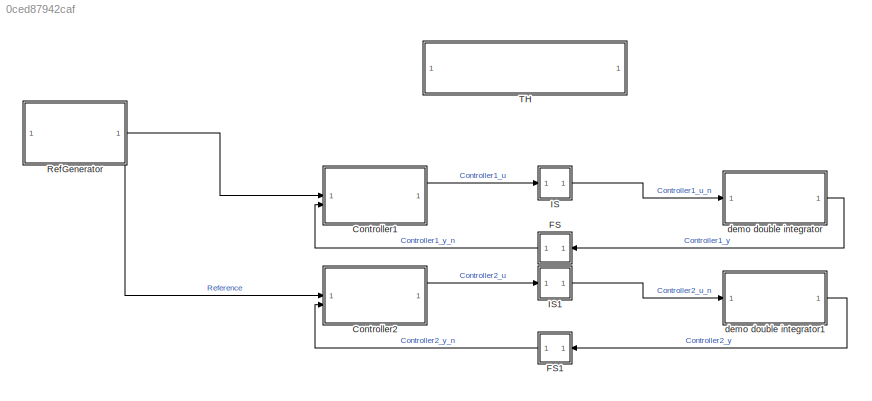
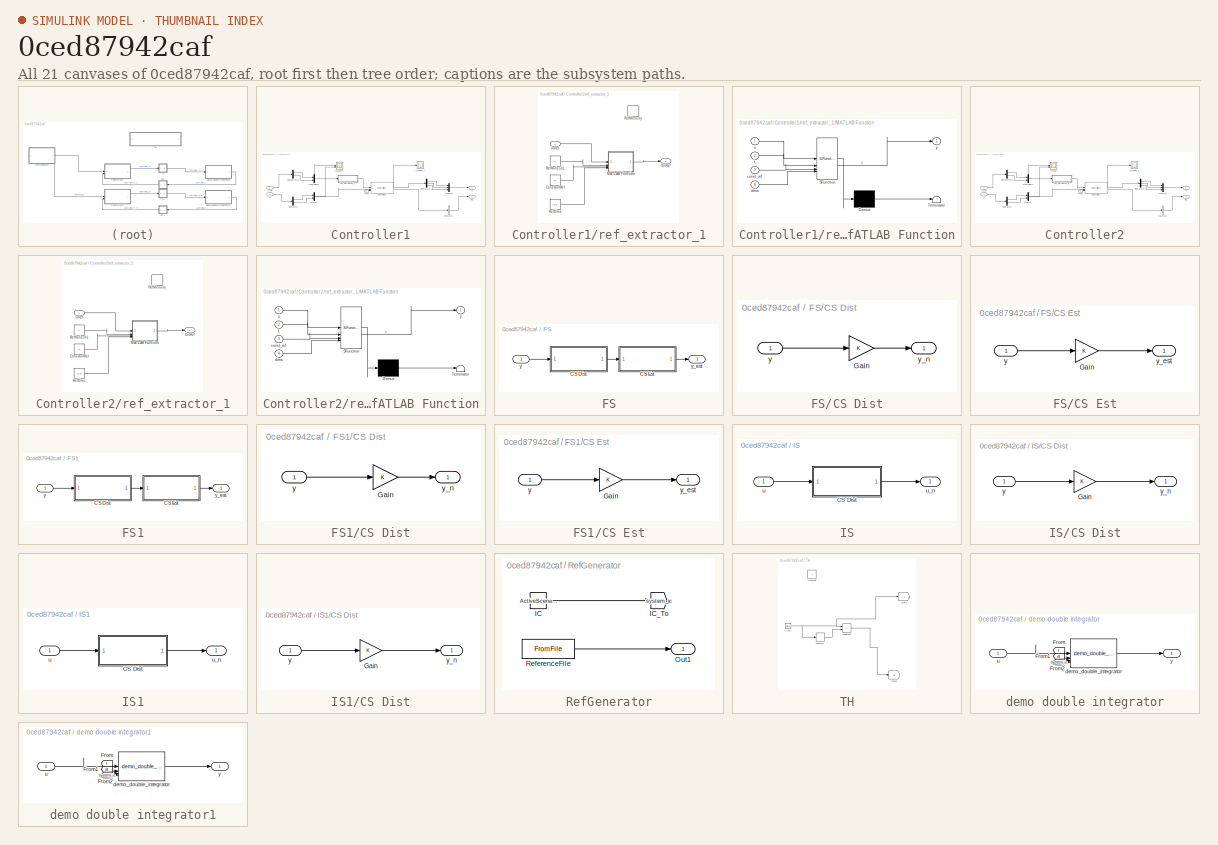
[diagram: thumbnail index - all 21 canvases of the model, root first then tree order]
MODEL slx_0ced87942caf
KIND model
CONFIG AbsTol = auto
CONFIG EnableMultiTasking = off
CONFIG FixedStep = 0.05
CONFIG InitFcn = on_model_start
CONFIG MaxStep = auto
CONFIG MinStep = auto
CONFIG PostLoadFcn = on_model_load
CONFIG RelTol = 1e-3
CONFIG SampleTimeConstraint = Unconstrained
CONFIG SolverName = FixedStepAuto
CONFIG StartTime = 0.0
CONFIG StopFcn = on_simulation_done
CONFIG StopTime = 10.0
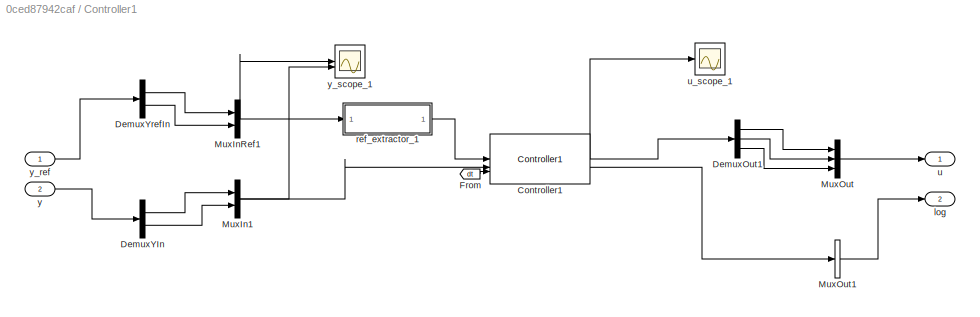
BLOCK [SubSystem] Controller1
BLOCK [Reference] Controller1/Controller1  REF=demo_lib_ctl/Controller1
  SourceBlock = demo_lib_ctl/Controller1
  Tag = __cs_comptype:ctl;__cs_compimpl:mat;
BLOCK [Demux] Controller1/DemuxOut1
  Outputs = 3
BLOCK [Demux] Controller1/DemuxYIn
  Outputs = 2
BLOCK [Demux] Controller1/DemuxYrefIn
  Outputs = 2
BLOCK [From] Controller1/From
  GotoTag = dt
  TagVisibility = global
BLOCK [Mux] Controller1/MuxIn1
  DisplayOption = bar
  Inputs = 2
BLOCK [Mux] Controller1/MuxInRef1
  DisplayOption = bar
  Inputs = 2
BLOCK [Mux] Controller1/MuxOut
  DisplayOption = bar
  Inputs = 3
BLOCK [BusCreator] Controller1/MuxOut1
  DisplayOption = bar
  InheritFromInputs = on
  Inputs = 1
BLOCK [Outport] Controller1/log
  Port = 2
BLOCK [SubSystem] Controller1/ref_extractor_1
BLOCK [Constant] Controller1/ref_extractor_1/ConstantRef
  Value = 0
BLOCK [Inport] Controller1/ref_extractor_1/InRef
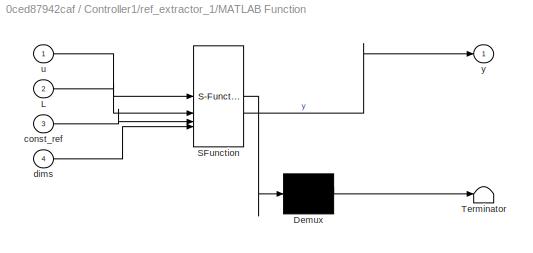
BLOCK [SubSystem] Controller1/ref_extractor_1/MATLAB Function
  ErrorFcn = Stateflow.Translate.translate
  PermitHierarchicalResolution = ExplicitOnly
  SFBlockType = MATLAB Function
  TreatAsAtomicUnit = on
BLOCK [Demux] Controller1/ref_extractor_1/MATLAB Function/ Demux 
  Outputs = 1
BLOCK [S-Function] Controller1/ref_extractor_1/MATLAB Function/ SFunction 
  EnableBusSupport = off
  FunctionName = sf_sfun
  Parameters = GlobalReference
  PortCounts = [4 2]
  SFcnIsStateOwnerBlock = off
  SFunctionDeploymentMode = off
  Tag = Stateflow S-Function 7
BLOCK [Terminator] Controller1/ref_extractor_1/MATLAB Function/ Terminator 
BLOCK [Inport] Controller1/ref_extractor_1/MATLAB Function/L
  Port = 2
BLOCK [Inport] Controller1/ref_extractor_1/MATLAB Function/const_ref
  Port = 3
BLOCK [Inport] Controller1/ref_extractor_1/MATLAB Function/dims
  Port = 4
BLOCK [Inport] Controller1/ref_extractor_1/MATLAB Function/u
BLOCK [Outport] Controller1/ref_extractor_1/MATLAB Function/y
BLOCK [Outport] Controller1/ref_extractor_1/OutRef
BLOCK [Constant] Controller1/ref_extractor_1/RefDims
  Value = [1 2]
BLOCK [Constant] Controller1/ref_extractor_1/RefHorizonL
BLOCK [DataStoreMemory] Controller1/ref_extractor_1/RefMemory
  DataStoreName = ref
  OutDataTypeStr = double
  ShowAdditionalParam = off
  SignalType = real
  WriteAfterWriteMsg = warning
BLOCK [Outport] Controller1/u
  PortDimensions = 3
BLOCK [Scope] Controller1/u_scope_1
  Floating = off
  NumInputPorts = 1
BLOCK [Inport] Controller1/y
  Port = 2
  PortDimensions = 2
BLOCK [Inport] Controller1/y_ref
  PortDimensions = 2
BLOCK [Scope] Controller1/y_scope_1
  Floating = off
  NumInputPorts = 2
BLOCK [SubSystem] Controller2
BLOCK [Reference] Controller2/Controller2  REF=demo_lib_ctl/Controller2
  SourceBlock = demo_lib_ctl/Controller2
  Tag = __cs_comptype:ctl;__cs_compimpl:py;
BLOCK [Demux] Controller2/DemuxOut1
  Outputs = 3
BLOCK [Demux] Controller2/DemuxYIn
  Outputs = 2
BLOCK [Demux] Controller2/DemuxYrefIn
  Outputs = 2
BLOCK [From] Controller2/From
  GotoTag = dt
  TagVisibility = global
BLOCK [Mux] Controller2/MuxIn1
  DisplayOption = bar
  Inputs = 2
BLOCK [Mux] Controller2/MuxInRef1
  DisplayOption = bar
  Inputs = 2
BLOCK [Mux] Controller2/MuxOut
  DisplayOption = bar
  Inputs = 3
BLOCK [BusCreator] Controller2/MuxOut1
  DisplayOption = bar
  InheritFromInputs = on
  Inputs = 1
BLOCK [Outport] Controller2/log
  Port = 2
BLOCK [SubSystem] Controller2/ref_extractor_1
BLOCK [Constant] Controller2/ref_extractor_1/ConstantRef
  Value = 0
BLOCK [Inport] Controller2/ref_extractor_1/InRef
BLOCK [SubSystem] Controller2/ref_extractor_1/MATLAB Function
  ErrorFcn = Stateflow.Translate.translate
  PermitHierarchicalResolution = ExplicitOnly
  SFBlockType = MATLAB Function
  TreatAsAtomicUnit = on
BLOCK [Demux] Controller2/ref_extractor_1/MATLAB Function/ Demux 
  Outputs = 1
BLOCK [S-Function] Controller2/ref_extractor_1/MATLAB Function/ SFunction 
  EnableBusSupport = off
  FunctionName = sf_sfun
  Parameters = GlobalReference
  PortCounts = [4 2]
  SFcnIsStateOwnerBlock = off
  SFunctionDeploymentMode = off
  Tag = Stateflow S-Function 1
BLOCK [Terminator] Controller2/ref_extractor_1/MATLAB Function/ Terminator 
BLOCK [Inport] Controller2/ref_extractor_1/MATLAB Function/L
  Port = 2
BLOCK [Inport] Controller2/ref_extractor_1/MATLAB Function/const_ref
  Port = 3
BLOCK [Inport] Controller2/ref_extractor_1/MATLAB Function/dims
  Port = 4
BLOCK [Inport] Controller2/ref_extractor_1/MATLAB Function/u
BLOCK [Outport] Controller2/ref_extractor_1/MATLAB Function/y
BLOCK [Outport] Controller2/ref_extractor_1/OutRef
BLOCK [Constant] Controller2/ref_extractor_1/RefDims
  Value = [1 2]
BLOCK [Constant] Controller2/ref_extractor_1/RefHorizonL
BLOCK [DataStoreMemory] Controller2/ref_extractor_1/RefMemory
  DataStoreName = ref
  OutDataTypeStr = double
  ShowAdditionalParam = off
  SignalType = real
  WriteAfterWriteMsg = warning
BLOCK [Outport] Controller2/u
  PortDimensions = 3
BLOCK [Scope] Controller2/u_scope_1
  Floating = off
  NumInputPorts = 1
BLOCK [Inport] Controller2/y
  Port = 2
  PortDimensions = 2
BLOCK [Inport] Controller2/y_ref
  PortDimensions = 2
BLOCK [Scope] Controller2/y_scope_1
  Floating = off
  NumInputPorts = 2
BLOCK [SubSystem] FS
  NameLocation = top
BLOCK [SubSystem] FS/CS Dist
BLOCK [Gain] FS/CS Dist/Gain
BLOCK [Inport] FS/CS Dist/y
BLOCK [Outport] FS/CS Dist/y_n
BLOCK [SubSystem] FS/CS Est
BLOCK [Gain] FS/CS Est/Gain
BLOCK [Inport] FS/CS Est/y
BLOCK [Outport] FS/CS Est/y_est
BLOCK [Inport] FS/y
BLOCK [Outport] FS/y_est
BLOCK [SubSystem] FS1
  NameLocation = top
BLOCK [SubSystem] FS1/CS Dist
BLOCK [Gain] FS1/CS Dist/Gain
BLOCK [Inport] FS1/CS Dist/y
BLOCK [Outport] FS1/CS Dist/y_n
BLOCK [SubSystem] FS1/CS Est
BLOCK [Gain] FS1/CS Est/Gain
BLOCK [Inport] FS1/CS Est/y
BLOCK [Outport] FS1/CS Est/y_est
BLOCK [Inport] FS1/y
BLOCK [Outport] FS1/y_est
BLOCK [SubSystem] IS
BLOCK [SubSystem] IS/CS Dist
BLOCK [Gain] IS/CS Dist/Gain
BLOCK [Inport] IS/CS Dist/y
BLOCK [Outport] IS/CS Dist/y_n
BLOCK [Inport] IS/u
BLOCK [Outport] IS/u_n
BLOCK [SubSystem] IS1
BLOCK [SubSystem] IS1/CS Dist
BLOCK [Gain] IS1/CS Dist/Gain
BLOCK [Inport] IS1/CS Dist/y
BLOCK [Outport] IS1/CS Dist/y_n
BLOCK [Inport] IS1/u
BLOCK [Outport] IS1/u_n
BLOCK [SubSystem] RefGenerator
  OpenFcn = on_reference_generator_open();
BLOCK [Constant] RefGenerator/IC
  Value = ActiveScenario.SystemIc
BLOCK [Goto] RefGenerator/IC_To
  GotoTag = system_ic
  TagVisibility = global
BLOCK [Outport] RefGenerator/Out1
BLOCK [FromFile] RefGenerator/ReferenceFile
  SampleTime = 0
BLOCK [SubSystem] TH
BLOCK [Clock] TH/Clock
BLOCK [Constant] TH/Constant
BLOCK [Goto] TH/Goto
  GotoTag = t
  TagVisibility = global
BLOCK [Goto] TH/Goto1
  GotoTag = dt
  TagVisibility = global
BLOCK [Memory] TH/Memory
BLOCK [Sum] TH/Subtract
  IconShape = rectangular
  Inputs = +-
BLOCK [SubSystem] demo double integrator
BLOCK [From] demo double integrator/From
  GotoTag = t
  TagVisibility = global
BLOCK [From] demo double integrator/From1
  GotoTag = dt
  TagVisibility = global
BLOCK [From] demo double integrator/From2
  GotoTag = system_ic
  TagVisibility = global
BLOCK [Reference] demo double integrator/demo_double_integrator  REF=demo_lib_sys/demo_double_integrator
  SourceBlock = demo_lib_sys/demo_double_integrator
  Tag = __cs_comptype:sys;__cs_compimpl:slx;
BLOCK [Inport] demo double integrator/u
BLOCK [Outport] demo double integrator/y
BLOCK [SubSystem] demo double integrator1
BLOCK [From] demo double integrator1/From
  GotoTag = t
  TagVisibility = global
BLOCK [From] demo double integrator1/From1
  GotoTag = dt
  TagVisibility = global
BLOCK [From] demo double integrator1/From2
  GotoTag = system_ic
  TagVisibility = global
BLOCK [Reference] demo double integrator1/demo_double_integrator  REF=demo_lib_sys/demo_double_integrator
  SourceBlock = demo_lib_sys/demo_double_integrator
  Tag = __cs_comptype:sys;__cs_compimpl:slx;
BLOCK [Inport] demo double integrator1/u
BLOCK [Outport] demo double integrator1/y
NET Controller1/Controller1:1 -> Controller1/DemuxOut1:1, Controller1/u_scope_1:1
LINE Controller1/Controller1:2 -> Controller1/MuxOut1:1
LINE Controller1/DemuxOut1:1 -> Controller1/MuxOut:1
LINE Controller1/DemuxOut1:2 -> Controller1/MuxOut:2
LINE Controller1/DemuxOut1:3 -> Controller1/MuxOut:3
LINE Controller1/DemuxYIn:1 -> Controller1/MuxIn1:1
LINE Controller1/DemuxYIn:2 -> Controller1/MuxIn1:2
LINE Controller1/DemuxYrefIn:1 -> Controller1/MuxInRef1:1
LINE Controller1/DemuxYrefIn:2 -> Controller1/MuxInRef1:2
LINE Controller1/From:1 -> Controller1/Controller1:3
NET Controller1/MuxIn1:1 -> Controller1/Controller1:2, Controller1/y_scope_1:2
NET Controller1/MuxInRef1:1 -> Controller1/ref_extractor_1:1, Controller1/y_scope_1:1
LINE Controller1/MuxOut1:1 -> Controller1/log:1
LINE Controller1/MuxOut:1 -> Controller1/u:1
LINE Controller1/ref_extractor_1/ConstantRef:1 -> Controller1/ref_extractor_1/MATLAB Function:3
LINE Controller1/ref_extractor_1/InRef:1 -> Controller1/ref_extractor_1/MATLAB Function:1
LINE Controller1/ref_extractor_1/MATLAB Function:1 -> Controller1/ref_extractor_1/OutRef:1
LINE Controller1/ref_extractor_1/RefDims:1 -> Controller1/ref_extractor_1/MATLAB Function:4
LINE Controller1/ref_extractor_1/RefHorizonL:1 -> Controller1/ref_extractor_1/MATLAB Function:2
LINE Controller1/ref_extractor_1:1 -> Controller1/Controller1:1
LINE Controller1/y:1 -> Controller1/DemuxYIn:1
LINE Controller1/y_ref:1 -> Controller1/DemuxYrefIn:1
LINE Controller1:1 -> IS:1
NET Controller2/Controller2:1 -> Controller2/DemuxOut1:1, Controller2/u_scope_1:1
LINE Controller2/Controller2:2 -> Controller2/MuxOut1:1
LINE Controller2/DemuxOut1:1 -> Controller2/MuxOut:1
LINE Controller2/DemuxOut1:2 -> Controller2/MuxOut:2
LINE Controller2/DemuxOut1:3 -> Controller2/MuxOut:3
LINE Controller2/DemuxYIn:1 -> Controller2/MuxIn1:1
LINE Controller2/DemuxYIn:2 -> Controller2/MuxIn1:2
LINE Controller2/DemuxYrefIn:1 -> Controller2/MuxInRef1:1
LINE Controller2/DemuxYrefIn:2 -> Controller2/MuxInRef1:2
LINE Controller2/From:1 -> Controller2/Controller2:3
NET Controller2/MuxIn1:1 -> Controller2/Controller2:2, Controller2/y_scope_1:2
NET Controller2/MuxInRef1:1 -> Controller2/ref_extractor_1:1, Controller2/y_scope_1:1
LINE Controller2/MuxOut1:1 -> Controller2/log:1
LINE Controller2/MuxOut:1 -> Controller2/u:1
LINE Controller2/ref_extractor_1/ConstantRef:1 -> Controller2/ref_extractor_1/MATLAB Function:3
LINE Controller2/ref_extractor_1/InRef:1 -> Controller2/ref_extractor_1/MATLAB Function:1
LINE Controller2/ref_extractor_1/MATLAB Function:1 -> Controller2/ref_extractor_1/OutRef:1
LINE Controller2/ref_extractor_1/RefDims:1 -> Controller2/ref_extractor_1/MATLAB Function:4
LINE Controller2/ref_extractor_1/RefHorizonL:1 -> Controller2/ref_extractor_1/MATLAB Function:2
LINE Controller2/ref_extractor_1:1 -> Controller2/Controller2:1
LINE Controller2/y:1 -> Controller2/DemuxYIn:1
LINE Controller2/y_ref:1 -> Controller2/DemuxYrefIn:1
LINE Controller2:1 -> IS1:1
LINE FS/CS Dist/Gain:1 -> FS/CS Dist/y_n:1
LINE FS/CS Dist/y:1 -> FS/CS Dist/Gain:1
LINE FS/CS Dist:1 -> FS/CS Est:1
LINE FS/CS Est/Gain:1 -> FS/CS Est/y_est:1
LINE FS/CS Est/y:1 -> FS/CS Est/Gain:1
LINE FS/CS Est:1 -> FS/y_est:1
LINE FS/y:1 -> FS/CS Dist:1
LINE FS1/CS Dist/Gain:1 -> FS1/CS Dist/y_n:1
LINE FS1/CS Dist/y:1 -> FS1/CS Dist/Gain:1
LINE FS1/CS Dist:1 -> FS1/CS Est:1
LINE FS1/CS Est/Gain:1 -> FS1/CS Est/y_est:1
LINE FS1/CS Est/y:1 -> FS1/CS Est/Gain:1
LINE FS1/CS Est:1 -> FS1/y_est:1
LINE FS1/y:1 -> FS1/CS Dist:1
LINE FS1:1 -> Controller2:2
LINE FS:1 -> Controller1:2
LINE IS/CS Dist/Gain:1 -> IS/CS Dist/y_n:1
LINE IS/CS Dist/y:1 -> IS/CS Dist/Gain:1
LINE IS/CS Dist:1 -> IS/u_n:1
LINE IS/u:1 -> IS/CS Dist:1
LINE IS1/CS Dist/Gain:1 -> IS1/CS Dist/y_n:1
LINE IS1/CS Dist/y:1 -> IS1/CS Dist/Gain:1
LINE IS1/CS Dist:1 -> IS1/u_n:1
LINE IS1/u:1 -> IS1/CS Dist:1
LINE IS1:1 -> demo double integrator1:1
LINE IS:1 -> demo double integrator:1
LINE RefGenerator/IC:1 -> RefGenerator/IC_To:1
LINE RefGenerator/ReferenceFile:1 -> RefGenerator/Out1:1
NET RefGenerator:1 -> Controller1:1, Controller2:1
NET TH/Clock:1 -> TH/Goto:1, TH/Memory:1, TH/Subtract:1
LINE TH/Memory:1 -> TH/Subtract:2
LINE TH/Subtract:1 -> TH/Goto1:1
LINE demo double integrator/From1:1 -> demo double integrator/demo_double_integrator:3
LINE demo double integrator/From2:1 -> demo double integrator/demo_double_integrator:4
LINE demo double integrator/From:1 -> demo double integrator/demo_double_integrator:2
LINE demo double integrator/demo_double_integrator:1 -> demo double integrator/y:1
LINE demo double integrator/u:1 -> demo double integrator/demo_double_integrator:1
LINE demo double integrator1/From1:1 -> demo double integrator1/demo_double_integrator:3
LINE demo double integrator1/From2:1 -> demo double integrator1/demo_double_integrator:4
LINE demo double integrator1/From:1 -> demo double integrator1/demo_double_integrator:2
LINE demo double integrator1/demo_double_integrator:1 -> demo double integrator1/y:1
LINE demo double integrator1/u:1 -> demo double integrator1/demo_double_integrator:1
LINE demo double integrator1:1 -> FS1:1
LINE demo double integrator:1 -> FS:1
note: NET lines group one-source signal fan-out (src -> all destinations, sorted); 1:1 wires keep LINE
CHART Controller2/ref_extractor_1/MATLAB Function states=1 transitions=1
  STATE_LABEL 'eML_blk_kernel()'
  STATE_LABEL 'SCRIPT:\nfunction y = fcn(u, L, const_ref, dims, GlobalReference)\n\npersistent cnt\nglobal ref\n\nif isempty(cnt)\n    cnt = 0;\nend\ncnt = cnt+1;\n\nhorizon_end = cnt+L-1;\nif L > 1 \n   if horizon_end > length(GlobalReference)\n        if size(ref, 1) == size(u, 1)\n            y = permute(ref, [2, 1]);\n        else\n            y = ref;\n        end       \n        return\n   end\n\n   if size(ref, 1) == size(u, 1...<+555ch>'
CHART Controller1/ref_extractor_1/MATLAB Function states=1 transitions=1
  STATE_LABEL 'eML_blk_kernel()'
  STATE_LABEL 'SCRIPT:\nfunction y = fcn(u, L, const_ref, dims, GlobalReference)\n\npersistent cnt\nglobal ref\n\nif isempty(cnt)\n    cnt = 0;\nend\ncnt = cnt+1;\n\nhorizon_end = cnt+L-1;\nif L > 1 \n   if horizon_end > length(GlobalReference)\n        if size(ref, 1) == size(u, 1)\n            y = permute(ref, [2, 1]);\n        else\n            y = ref;\n        end       \n        return\n   end\n\n   if size(ref, 1) == size(u, 1...<+555ch>'
CHART  states=0 transitions=0
CHART  states=0 transitions=0
